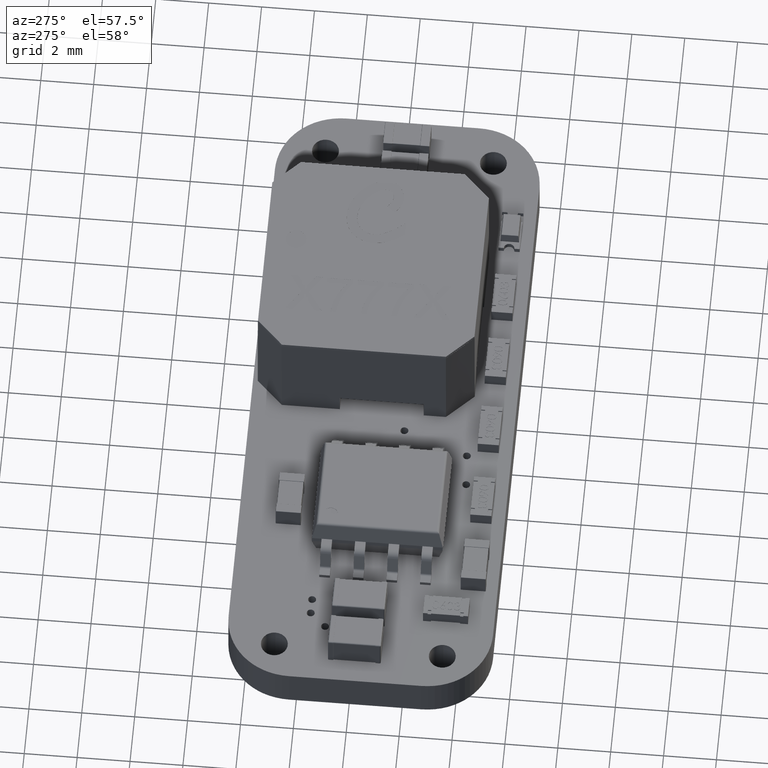
[diagram: clean part render]
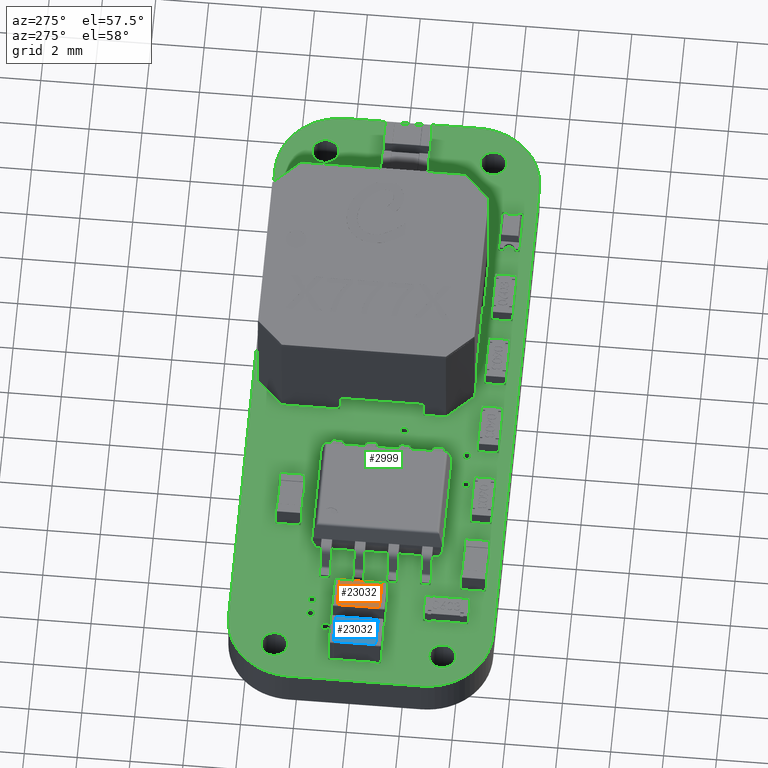
[diagram: same view with three faces highlighted in distinct colors, each labeled with its STEP entity id]
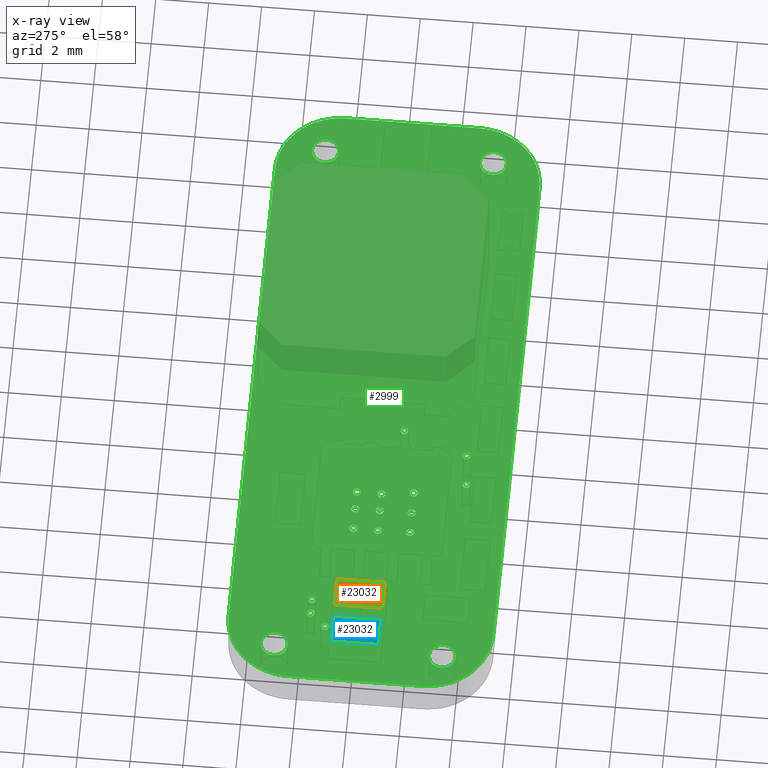
[diagram: x-ray of the same camera — body ghosted, the three highlighted faces saturated]
A machine part, auxiliary view with three faces highlighted in distinct colors.
The next image is the same camera in x-ray (body ghosted, the three faces saturated) — at least one of them is partly hidden behind the body in this view.
Their STEP definitions:

[orange] entity #23032 — the highlighted planar face has unit normal (-0, -0, -1).
#22825 = VERTEX_POINT('',#22826);
#22826 = CARTESIAN_POINT('',(0.9,-0.56,1.235));
#22835 = EDGE_CURVE('',#22825,#22836,#22838,.T.);
#22836 = VERTEX_POINT('',#22837);
#22837 = CARTESIAN_POINT('',(-0.9,-0.56,1.235));
#22838 = LINE('',#22839,#22840);
#22839 = CARTESIAN_POINT('',(0.9,-0.56,1.235));
#22840 = VECTOR('',#22841,1.);
#22841 = DIRECTION('',(-1.,0.,-1.204669080539E-16));
#22911 = VERTEX_POINT('',#22912);
#22912 = CARTESIAN_POINT('',(0.9,0.56,1.235));
#22928 = VERTEX_POINT('',#22929);
#22929 = CARTESIAN_POINT('',(-0.9,0.56,1.235));
#22936 = EDGE_CURVE('',#22911,#22928,#22937,.T.);
#22937 = LINE('',#22938,#22939);
#22938 = CARTESIAN_POINT('',(-0.9,0.56,1.235));
#22939 = VECTOR('',#22940,1.);
#22940 = DIRECTION('',(-1.,0.,-1.204669080539E-16));
#23032 = ADVANCED_FACE('',(#23033),#23049,.F.);
#23033 = FACE_BOUND('',#23034,.T.);
#23034 = EDGE_LOOP('',(#23035,#23041,#23042,#23048));
#23035 = ORIENTED_EDGE('',*,*,#23036,.T.);
#23036 = EDGE_CURVE('',#22825,#22911,#23037,.T.);
#23037 = LINE('',#23038,#23039);
#23038 = CARTESIAN_POINT('',(0.9,-0.61,1.235));
#23039 = VECTOR('',#23040,1.);
#23040 = DIRECTION('',(0.,1.,0.));
#23041 = ORIENTED_EDGE('',*,*,#22936,.T.);
#23042 = ORIENTED_EDGE('',*,*,#23043,.F.);
#23043 = EDGE_CURVE('',#22836,#22928,#23044,.T.);
#23044 = LINE('',#23045,#23046);
#23045 = CARTESIAN_POINT('',(-0.9,-0.61,1.235));
#23046 = VECTOR('',#23047,1.);
#23047 = DIRECTION('',(0.,1.,0.));
#23048 = ORIENTED_EDGE('',*,*,#22835,.F.);
#23049 = PLANE('',#23050);
#23050 = AXIS2_PLACEMENT_3D('',#23051,#23052,#23053);
#23051 = CARTESIAN_POINT('',(-3.252606517457E-16,-0.61,1.235));
#23052 = DIRECTION('',(1.204669080539E-16,0.,-1.));
#23053 = DIRECTION('',(-1.,0.,-1.204669080539E-16));

[blue] entity #23032 — the highlighted planar face has unit normal (-0, -0, -1).
#22825 = VERTEX_POINT('',#22826);
#22826 = CARTESIAN_POINT('',(0.9,-0.56,1.235));
#22835 = EDGE_CURVE('',#22825,#22836,#22838,.T.);
#22836 = VERTEX_POINT('',#22837);
#22837 = CARTESIAN_POINT('',(-0.9,-0.56,1.235));
#22838 = LINE('',#22839,#22840);
#22839 = CARTESIAN_POINT('',(0.9,-0.56,1.235));
#22840 = VECTOR('',#22841,1.);
#22841 = DIRECTION('',(-1.,0.,-1.204669080539E-16));
#22911 = VERTEX_POINT('',#22912);
#22912 = CARTESIAN_POINT('',(0.9,0.56,1.235));
#22928 = VERTEX_POINT('',#22929);
#22929 = CARTESIAN_POINT('',(-0.9,0.56,1.235));
#22936 = EDGE_CURVE('',#22911,#22928,#22937,.T.);
#22937 = LINE('',#22938,#22939);
#22938 = CARTESIAN_POINT('',(-0.9,0.56,1.235));
#22939 = VECTOR('',#22940,1.);
#22940 = DIRECTION('',(-1.,0.,-1.204669080539E-16));
#23032 = ADVANCED_FACE('',(#23033),#23049,.F.);
#23033 = FACE_BOUND('',#23034,.T.);
#23034 = EDGE_LOOP('',(#23035,#23041,#23042,#23048));
#23035 = ORIENTED_EDGE('',*,*,#23036,.T.);
#23036 = EDGE_CURVE('',#22825,#22911,#23037,.T.);
#23037 = LINE('',#23038,#23039);
#23038 = CARTESIAN_POINT('',(0.9,-0.61,1.235));
#23039 = VECTOR('',#23040,1.);
#23040 = DIRECTION('',(0.,1.,0.));
#23041 = ORIENTED_EDGE('',*,*,#22936,.T.);
#23042 = ORIENTED_EDGE('',*,*,#23043,.F.);
#23043 = EDGE_CURVE('',#22836,#22928,#23044,.T.);
#23044 = LINE('',#23045,#23046);
#23045 = CARTESIAN_POINT('',(-0.9,-0.61,1.235));
#23046 = VECTOR('',#23047,1.);
#23047 = DIRECTION('',(0.,1.,0.));
#23048 = ORIENTED_EDGE('',*,*,#22835,.F.);
#23049 = PLANE('',#23050);
#23050 = AXIS2_PLACEMENT_3D('',#23051,#23052,#23053);
#23051 = CARTESIAN_POINT('',(-3.252606517457E-16,-0.61,1.235));
#23052 = DIRECTION('',(1.204669080539E-16,0.,-1.));
#23053 = DIRECTION('',(-1.,0.,-1.204669080539E-16));

[green] entity #2999 — the highlighted planar face has unit normal (0, 0, 1).
#102 = VERTEX_POINT('',#103);
#103 = CARTESIAN_POINT('',(35.5095,-5.246,0.82));
#109 = EDGE_CURVE('',#102,#110,#112,.T.);
#110 = VERTEX_POINT('',#111);
#111 = CARTESIAN_POINT('',(15.5095,-5.246,0.82));
#112 = LINE('',#113,#114);
#113 = CARTESIAN_POINT('',(35.5095,-5.246,0.82));
#114 = VECTOR('',#115,1.);
#115 = DIRECTION('',(-1.,0.,0.));
#142 = VERTEX_POINT('',#143);
#143 = CARTESIAN_POINT('',(35.76932,-5.25863,0.82));
#149 = EDGE_CURVE('',#142,#102,#150,.T.);
#150 = LINE('',#151,#152);
#151 = CARTESIAN_POINT('',(35.76932,-5.25863,0.82));
#152 = VECTOR('',#153,1.);
#153 = DIRECTION('',(-0.998820595701,4.855324503005E-02,0.));
#171 = EDGE_CURVE('',#110,#172,#174,.T.);
#172 = VERTEX_POINT('',#173);
#173 = CARTESIAN_POINT('',(15.24968,-5.25863,0.82));
#174 = LINE('',#175,#176);
#175 = CARTESIAN_POINT('',(15.5095,-5.246,0.82));
#176 = VECTOR('',#177,1.);
#177 = DIRECTION('',(-0.998820595701,-4.855324503005E-02,0.));
#204 = VERTEX_POINT('',#205);
#205 = CARTESIAN_POINT('',(36.02067,-5.29574,0.82));
#211 = EDGE_CURVE('',#204,#142,#212,.T.);
#212 = LINE('',#213,#214);
#213 = CARTESIAN_POINT('',(36.02067,-5.29574,0.82));
#214 = VECTOR('',#215,1.);
#215 = DIRECTION('',(-0.989275824391,0.146059382706,0.));
#233 = EDGE_CURVE('',#172,#234,#236,.T.);
#234 = VERTEX_POINT('',#235);
#235 = CARTESIAN_POINT('',(14.99833,-5.29574,0.82));
#236 = LINE('',#237,#238);
#237 = CARTESIAN_POINT('',(15.24968,-5.25863,0.82));
#238 = VECTOR('',#239,1.);
#239 = DIRECTION('',(-0.989275824391,-0.146059382706,0.));
#266 = VERTEX_POINT('',#267);
#267 = CARTESIAN_POINT('',(36.26241,-5.35621,0.82));
#273 = EDGE_CURVE('',#266,#204,#274,.T.);
#274 = LINE('',#275,#276);
#275 = CARTESIAN_POINT('',(36.26241,-5.35621,0.82));
#276 = VECTOR('',#277,1.);
#277 = DIRECTION('',(-0.970109442671,0.242667816656,0.));
#295 = EDGE_CURVE('',#234,#296,#298,.T.);
#296 = VERTEX_POINT('',#297);
#297 = CARTESIAN_POINT('',(14.75659,-5.35621,0.82));
#298 = LINE('',#299,#300);
#299 = CARTESIAN_POINT('',(14.99833,-5.29574,0.82));
#300 = VECTOR('',#301,1.);
#301 = DIRECTION('',(-0.970109442671,-0.242667816656,0.));
#328 = VERTEX_POINT('',#329);
#329 = CARTESIAN_POINT('',(36.49339,-5.43887,0.82));
#335 = EDGE_CURVE('',#328,#266,#336,.T.);
#336 = LINE('',#337,#338);
#337 = CARTESIAN_POINT('',(36.49339,-5.43887,0.82));
#338 = VECTOR('',#339,1.);
#339 = DIRECTION('',(-0.941525917724,0.336940567837,0.));
#357 = EDGE_CURVE('',#296,#358,#360,.T.);
#358 = VERTEX_POINT('',#359);
#359 = CARTESIAN_POINT('',(14.52561,-5.43887,0.82));
#360 = LINE('',#361,#362);
#361 = CARTESIAN_POINT('',(14.75659,-5.35621,0.82));
#362 = VECTOR('',#363,1.);
#363 = DIRECTION('',(-0.941525917724,-0.336940567837,0.));
#390 = VERTEX_POINT('',#391);
#391 = CARTESIAN_POINT('',(36.71247,-5.54259,0.82));
#397 = EDGE_CURVE('',#390,#328,#398,.T.);
#398 = LINE('',#399,#400);
#399 = CARTESIAN_POINT('',(36.71247,-5.54259,0.82));
#400 = VECTOR('',#401,1.);
#401 = DIRECTION('',(-0.903825184632,0.427901899534,0.));
#419 = EDGE_CURVE('',#358,#420,#422,.T.);
#420 = VERTEX_POINT('',#421);
#421 = CARTESIAN_POINT('',(14.30653,-5.54259,0.82));
#422 = LINE('',#423,#424);
#423 = CARTESIAN_POINT('',(14.52561,-5.43887,0.82));
#424 = VECTOR('',#425,1.);
#425 = DIRECTION('',(-0.903825184632,-0.427901899534,0.));
#452 = VERTEX_POINT('',#453);
#453 = CARTESIAN_POINT('',(36.9185,-5.66623,0.82));
#459 = EDGE_CURVE('',#452,#390,#460,.T.);
#460 = LINE('',#461,#462);
#461 = CARTESIAN_POINT('',(36.9185,-5.66623,0.82));
#462 = VECTOR('',#463,1.);
#463 = DIRECTION('',(-0.857452529276,0.514563076832,0.));
#481 = EDGE_CURVE('',#420,#482,#484,.T.);
#482 = VERTEX_POINT('',#483);
#483 = CARTESIAN_POINT('',(14.1005,-5.66623,0.82));
#484 = LINE('',#485,#486);
#485 = CARTESIAN_POINT('',(14.30653,-5.54259,0.82));
#486 = VECTOR('',#487,1.);
#487 = DIRECTION('',(-0.857452529276,-0.514563076832,0.));
#514 = VERTEX_POINT('',#515);
#515 = CARTESIAN_POINT('',(37.11034,-5.80863,0.82));
#521 = EDGE_CURVE('',#514,#452,#522,.T.);
#522 = LINE('',#523,#524);
#523 = CARTESIAN_POINT('',(37.11034,-5.80863,0.82));
#524 = VECTOR('',#525,1.);
#525 = DIRECTION('',(-0.802963619462,0.596028041136,0.));
#543 = EDGE_CURVE('',#482,#544,#546,.T.);
#544 = VERTEX_POINT('',#545);
#545 = CARTESIAN_POINT('',(13.90866,-5.80863,0.82));
#546 = LINE('',#547,#548);
#547 = CARTESIAN_POINT('',(14.1005,-5.66623,0.82));
#548 = VECTOR('',#549,1.);
#549 = DIRECTION('',(-0.802963619462,-0.596028041136,0.));
#576 = VERTEX_POINT('',#577);
#577 = CARTESIAN_POINT('',(37.28684,-5.96866,0.82));
#583 = EDGE_CURVE('',#576,#514,#584,.T.);
#584 = LINE('',#585,#586);
#585 = CARTESIAN_POINT('',(37.28684,-5.96866,0.82));
#586 = VECTOR('',#587,1.);
#587 = DIRECTION('',(-0.740826374458,0.671696570564,0.));
#605 = EDGE_CURVE('',#544,#606,#608,.T.);
#606 = VERTEX_POINT('',#607);
#607 = CARTESIAN_POINT('',(13.73216,-5.96866,0.82));
#608 = LINE('',#609,#610);
#609 = CARTESIAN_POINT('',(13.90866,-5.80863,0.82));
#610 = VECTOR('',#611,1.);
#611 = DIRECTION('',(-0.740826374458,-0.671696570564,0.));
#638 = VERTEX_POINT('',#639);
#639 = CARTESIAN_POINT('',(37.44687,-6.14516,0.82));
#645 = EDGE_CURVE('',#638,#576,#646,.T.);
#646 = LINE('',#647,#648);
#647 = CARTESIAN_POINT('',(37.44687,-6.14516,0.82));
#648 = VECTOR('',#649,1.);
#649 = DIRECTION('',(-0.671696570564,0.740826374458,0.));
#667 = EDGE_CURVE('',#606,#668,#670,.T.);
#668 = VERTEX_POINT('',#669);
#669 = CARTESIAN_POINT('',(13.57213,-6.14516,0.82));
#670 = LINE('',#671,#672);
#671 = CARTESIAN_POINT('',(13.73216,-5.96866,0.82));
#672 = VECTOR('',#673,1.);
#673 = DIRECTION('',(-0.671696570564,-0.740826374458,0.));
#700 = VERTEX_POINT('',#701);
#701 = CARTESIAN_POINT('',(37.58927,-6.337,0.82));
#707 = EDGE_CURVE('',#700,#638,#708,.T.);
#708 = LINE('',#709,#710);
#709 = CARTESIAN_POINT('',(37.58927,-6.337,0.82));
#710 = VECTOR('',#711,1.);
#711 = DIRECTION('',(-0.596028041136,0.802963619462,0.));
#729 = EDGE_CURVE('',#668,#730,#732,.T.);
#730 = VERTEX_POINT('',#731);
#731 = CARTESIAN_POINT('',(13.42973,-6.337,0.82));
#732 = LINE('',#733,#734);
#733 = CARTESIAN_POINT('',(13.57213,-6.14516,0.82));
#734 = VECTOR('',#735,1.);
#735 = DIRECTION('',(-0.596028041136,-0.802963619462,0.));
#762 = VERTEX_POINT('',#763);
#763 = CARTESIAN_POINT('',(37.71291,-6.54304,0.82));
#769 = EDGE_CURVE('',#762,#700,#770,.T.);
#770 = LINE('',#771,#772);
#771 = CARTESIAN_POINT('',(37.71291,-6.54304,0.82));
#772 = VECTOR('',#773,1.);
#773 = DIRECTION('',(-0.514544715016,0.857463548058,0.));
#791 = EDGE_CURVE('',#730,#792,#794,.T.);
#792 = VERTEX_POINT('',#793);
#793 = CARTESIAN_POINT('',(13.30609,-6.54304,0.82));
#794 = LINE('',#795,#796);
#795 = CARTESIAN_POINT('',(13.42973,-6.337,0.82));
#796 = VECTOR('',#797,1.);
#797 = DIRECTION('',(-0.514544715016,-0.857463548058,0.));
#824 = VERTEX_POINT('',#825);
#825 = CARTESIAN_POINT('',(37.81663,-6.76211,0.82));
#831 = EDGE_CURVE('',#824,#762,#832,.T.);
#832 = LINE('',#833,#834);
#833 = CARTESIAN_POINT('',(37.81663,-6.76211,0.82));
#834 = VECTOR('',#835,1.);
#835 = DIRECTION('',(-0.427917855561,0.903817630328,0.));
#853 = EDGE_CURVE('',#792,#854,#856,.T.);
#854 = VERTEX_POINT('',#855);
#855 = CARTESIAN_POINT('',(13.20237,-6.76211,0.82));
#856 = LINE('',#857,#858);
#857 = CARTESIAN_POINT('',(13.30609,-6.54304,0.82));
#858 = VECTOR('',#859,1.);
#859 = DIRECTION('',(-0.427917855561,-0.903817630328,0.));
#886 = VERTEX_POINT('',#887);
#887 = CARTESIAN_POINT('',(37.89929,-6.99309,0.82));
#893 = EDGE_CURVE('',#886,#824,#894,.T.);
#894 = LINE('',#895,#896);
#895 = CARTESIAN_POINT('',(37.89929,-6.99309,0.82));
#896 = VECTOR('',#897,1.);
#897 = DIRECTION('',(-0.336940567837,0.941525917724,0.));
#915 = EDGE_CURVE('',#854,#916,#918,.T.);
#916 = VERTEX_POINT('',#917);
#917 = CARTESIAN_POINT('',(13.11971,-6.99309,0.82));
#918 = LINE('',#919,#920);
#919 = CARTESIAN_POINT('',(13.20237,-6.76211,0.82));
#920 = VECTOR('',#921,1.);
#921 = DIRECTION('',(-0.336940567837,-0.941525917724,0.));
#948 = VERTEX_POINT('',#949);
#949 = CARTESIAN_POINT('',(37.95976,-7.23483,0.82));
#955 = EDGE_CURVE('',#948,#886,#956,.T.);
#956 = LINE('',#957,#958);
#957 = CARTESIAN_POINT('',(37.95976,-7.23483,0.82));
#958 = VECTOR('',#959,1.);
#959 = DIRECTION('',(-0.242667816656,0.970109442671,0.));
#977 = EDGE_CURVE('',#916,#978,#980,.T.);
#978 = VERTEX_POINT('',#979);
#979 = CARTESIAN_POINT('',(13.05924,-7.23483,0.82));
#980 = LINE('',#981,#982);
#981 = CARTESIAN_POINT('',(13.11971,-6.99309,0.82));
#982 = VECTOR('',#983,1.);
#983 = DIRECTION('',(-0.242667816656,-0.970109442671,0.));
#1010 = VERTEX_POINT('',#1011);
#1011 = CARTESIAN_POINT('',(37.99687,-7.48618,0.82));
#1017 = EDGE_CURVE('',#1010,#948,#1018,.T.);
#1018 = LINE('',#1019,#1020);
#1019 = CARTESIAN_POINT('',(37.99687,-7.48618,0.82));
#1020 = VECTOR('',#1021,1.);
#1021 = DIRECTION('',(-0.146059382706,0.989275824391,0.));
#1039 = EDGE_CURVE('',#978,#1040,#1042,.T.);
#1040 = VERTEX_POINT('',#1041);
#1041 = CARTESIAN_POINT('',(13.02213,-7.48618,0.82));
#1042 = LINE('',#1043,#1044);
#1043 = CARTESIAN_POINT('',(13.05924,-7.23483,0.82));
#1044 = VECTOR('',#1045,1.);
#1045 = DIRECTION('',(-0.146059382706,-0.989275824391,0.));
#1072 = VERTEX_POINT('',#1073);
#1073 = CARTESIAN_POINT('',(38.0095,-7.746,0.82));
#1079 = EDGE_CURVE('',#1072,#1010,#1080,.T.);
#1080 = LINE('',#1081,#1082);
#1081 = CARTESIAN_POINT('',(38.0095,-7.746,0.82));
#1082 = VECTOR('',#1083,1.);
#1083 = DIRECTION('',(-4.855324503005E-02,0.998820595701,0.));
#1101 = EDGE_CURVE('',#1040,#1102,#1104,.T.);
#1102 = VERTEX_POINT('',#1103);
#1103 = CARTESIAN_POINT('',(13.0095,-7.746,0.82));
#1104 = LINE('',#1105,#1106);
#1105 = CARTESIAN_POINT('',(13.02213,-7.48618,0.82));
#1106 = VECTOR('',#1107,1.);
#1107 = DIRECTION('',(-4.855324503005E-02,-0.998820595701,0.));
#1134 = VERTEX_POINT('',#1135);
#1135 = CARTESIAN_POINT('',(38.0095,-12.746,0.82));
#1141 = EDGE_CURVE('',#1134,#1072,#1142,.T.);
#1142 = LINE('',#1143,#1144);
#1143 = CARTESIAN_POINT('',(38.0095,-12.746,0.82));
#1144 = VECTOR('',#1145,1.);
#1145 = DIRECTION('',(0.,1.,0.));
#1163 = EDGE_CURVE('',#1102,#1164,#1166,.T.);
#1164 = VERTEX_POINT('',#1165);
#1165 = CARTESIAN_POINT('',(13.0095,-12.746,0.82));
#1166 = LINE('',#1167,#1168);
#1167 = CARTESIAN_POINT('',(13.0095,-7.746,0.82));
#1168 = VECTOR('',#1169,1.);
#1169 = DIRECTION('',(0.,-1.,0.));
#1196 = VERTEX_POINT('',#1197);
#1197 = CARTESIAN_POINT('',(37.99687,-13.00582,0.82));
#1203 = EDGE_CURVE('',#1196,#1134,#1204,.T.);
#1204 = LINE('',#1205,#1206);
#1205 = CARTESIAN_POINT('',(37.99687,-13.00582,0.82));
#1206 = VECTOR('',#1207,1.);
#1207 = DIRECTION('',(4.855324503005E-02,0.998820595701,0.));
#1225 = EDGE_CURVE('',#1164,#1226,#1228,.T.);
#1226 = VERTEX_POINT('',#1227);
#1227 = CARTESIAN_POINT('',(13.02213,-13.00582,0.82));
#1228 = LINE('',#1229,#1230);
#1229 = CARTESIAN_POINT('',(13.0095,-12.746,0.82));
#1230 = VECTOR('',#1231,1.);
#1231 = DIRECTION('',(4.855324503005E-02,-0.998820595701,0.));
#1258 = VERTEX_POINT('',#1259);
#1259 = CARTESIAN_POINT('',(37.95976,-13.25717,0.82));
#1265 = EDGE_CURVE('',#1258,#1196,#1266,.T.);
#1266 = LINE('',#1267,#1268);
#1267 = CARTESIAN_POINT('',(37.95976,-13.25717,0.82));
#1268 = VECTOR('',#1269,1.);
#1269 = DIRECTION('',(0.146059382706,0.989275824391,0.));
#1287 = EDGE_CURVE('',#1226,#1288,#1290,.T.);
#1288 = VERTEX_POINT('',#1289);
#1289 = CARTESIAN_POINT('',(13.05924,-13.25717,0.82));
#1290 = LINE('',#1291,#1292);
#1291 = CARTESIAN_POINT('',(13.02213,-13.00582,0.82));
#1292 = VECTOR('',#1293,1.);
#1293 = DIRECTION('',(0.146059382706,-0.989275824391,0.));
#1320 = VERTEX_POINT('',#1321);
#1321 = CARTESIAN_POINT('',(37.89929,-13.49891,0.82));
#1327 = EDGE_CURVE('',#1320,#1258,#1328,.T.);
#1328 = LINE('',#1329,#1330);
#1329 = CARTESIAN_POINT('',(37.89929,-13.49891,0.82));
#1330 = VECTOR('',#1331,1.);
#1331 = DIRECTION('',(0.242667816656,0.970109442671,0.));
#1349 = EDGE_CURVE('',#1288,#1350,#1352,.T.);
#1350 = VERTEX_POINT('',#1351);
#1351 = CARTESIAN_POINT('',(13.11971,-13.49891,0.82));
#1352 = LINE('',#1353,#1354);
#1353 = CARTESIAN_POINT('',(13.05924,-13.25717,0.82));
#1354 = VECTOR('',#1355,1.);
#1355 = DIRECTION('',(0.242667816656,-0.970109442671,0.));
#1382 = VERTEX_POINT('',#1383);
#1383 = CARTESIAN_POINT('',(37.81663,-13.72989,0.82));
#1389 = EDGE_CURVE('',#1382,#1320,#1390,.T.);
#1390 = LINE('',#1391,#1392);
#1391 = CARTESIAN_POINT('',(37.81663,-13.72989,0.82));
#1392 = VECTOR('',#1393,1.);
#1393 = DIRECTION('',(0.336940567837,0.941525917724,0.));
#1411 = EDGE_CURVE('',#1350,#1412,#1414,.T.);
#1412 = VERTEX_POINT('',#1413);
#1413 = CARTESIAN_POINT('',(13.20237,-13.72989,0.82));
#1414 = LINE('',#1415,#1416);
#1415 = CARTESIAN_POINT('',(13.11971,-13.49891,0.82));
#1416 = VECTOR('',#1417,1.);
#1417 = DIRECTION('',(0.336940567837,-0.941525917724,0.));
#1444 = VERTEX_POINT('',#1445);
#1445 = CARTESIAN_POINT('',(37.71291,-13.94896,0.82));
#1451 = EDGE_CURVE('',#1444,#1382,#1452,.T.);
#1452 = LINE('',#1453,#1454);
#1453 = CARTESIAN_POINT('',(37.71291,-13.94896,0.82));
#1454 = VECTOR('',#1455,1.);
#1455 = DIRECTION('',(0.427917855561,0.903817630328,0.));
#1473 = EDGE_CURVE('',#1412,#1474,#1476,.T.);
#1474 = VERTEX_POINT('',#1475);
#1475 = CARTESIAN_POINT('',(13.30609,-13.94896,0.82));
#1476 = LINE('',#1477,#1478);
#1477 = CARTESIAN_POINT('',(13.20237,-13.72989,0.82));
#1478 = VECTOR('',#1479,1.);
#1479 = DIRECTION('',(0.427917855561,-0.903817630328,0.));
#1506 = VERTEX_POINT('',#1507);
#1507 = CARTESIAN_POINT('',(37.58927,-14.155,0.82));
#1513 = EDGE_CURVE('',#1506,#1444,#1514,.T.);
#1514 = LINE('',#1515,#1516);
#1515 = CARTESIAN_POINT('',(37.58927,-14.155,0.82));
#1516 = VECTOR('',#1517,1.);
#1517 = DIRECTION('',(0.514544715016,0.857463548058,0.));
#1535 = EDGE_CURVE('',#1474,#1536,#1538,.T.);
#1536 = VERTEX_POINT('',#1537);
#1537 = CARTESIAN_POINT('',(13.42973,-14.155,0.82));
#1538 = LINE('',#1539,#1540);
#1539 = CARTESIAN_POINT('',(13.30609,-13.94896,0.82));
#1540 = VECTOR('',#1541,1.);
#1541 = DIRECTION('',(0.514544715016,-0.857463548058,0.));
#1568 = VERTEX_POINT('',#1569);
#1569 = CARTESIAN_POINT('',(37.44687,-14.34684,0.82));
#1575 = EDGE_CURVE('',#1568,#1506,#1576,.T.);
#1576 = LINE('',#1577,#1578);
#1577 = CARTESIAN_POINT('',(37.44687,-14.34684,0.82));
#1578 = VECTOR('',#1579,1.);
#1579 = DIRECTION('',(0.596028041136,0.802963619462,0.));
#1597 = EDGE_CURVE('',#1536,#1598,#1600,.T.);
#1598 = VERTEX_POINT('',#1599);
#1599 = CARTESIAN_POINT('',(13.57213,-14.34684,0.82));
#1600 = LINE('',#1601,#1602);
#1601 = CARTESIAN_POINT('',(13.42973,-14.155,0.82));
#1602 = VECTOR('',#1603,1.);
#1603 = DIRECTION('',(0.596028041136,-0.802963619462,0.));
#1630 = VERTEX_POINT('',#1631);
#1631 = CARTESIAN_POINT('',(37.28684,-14.52334,0.82));
#1637 = EDGE_CURVE('',#1630,#1568,#1638,.T.);
#1638 = LINE('',#1639,#1640);
#1639 = CARTESIAN_POINT('',(37.28684,-14.52334,0.82));
#1640 = VECTOR('',#1641,1.);
#1641 = DIRECTION('',(0.671696570564,0.740826374458,0.));
#1659 = EDGE_CURVE('',#1598,#1660,#1662,.T.);
#1660 = VERTEX_POINT('',#1661);
#1661 = CARTESIAN_POINT('',(13.73216,-14.52334,0.82));
#1662 = LINE('',#1663,#1664);
#1663 = CARTESIAN_POINT('',(13.57213,-14.34684,0.82));
#1664 = VECTOR('',#1665,1.);
#1665 = DIRECTION('',(0.671696570564,-0.740826374458,0.));
#1692 = VERTEX_POINT('',#1693);
#1693 = CARTESIAN_POINT('',(37.11034,-14.68337,0.82));
#1699 = EDGE_CURVE('',#1692,#1630,#1700,.T.);
#1700 = LINE('',#1701,#1702);
#1701 = CARTESIAN_POINT('',(37.11034,-14.68337,0.82));
#1702 = VECTOR('',#1703,1.);
#1703 = DIRECTION('',(0.740826374458,0.671696570564,0.));
#1721 = EDGE_CURVE('',#1660,#1722,#1724,.T.);
#1722 = VERTEX_POINT('',#1723);
#1723 = CARTESIAN_POINT('',(13.90866,-14.68337,0.82));
#1724 = LINE('',#1725,#1726);
#1725 = CARTESIAN_POINT('',(13.73216,-14.52334,0.82));
#1726 = VECTOR('',#1727,1.);
#1727 = DIRECTION('',(0.740826374458,-0.671696570564,0.));
#1754 = VERTEX_POINT('',#1755);
#1755 = CARTESIAN_POINT('',(36.9185,-14.82577,0.82));
#1761 = EDGE_CURVE('',#1754,#1692,#1762,.T.);
#1762 = LINE('',#1763,#1764);
#1763 = CARTESIAN_POINT('',(36.9185,-14.82577,0.82));
#1764 = VECTOR('',#1765,1.);
#1765 = DIRECTION('',(0.802963619462,0.596028041136,0.));
#1783 = EDGE_CURVE('',#1722,#1784,#1786,.T.);
#1784 = VERTEX_POINT('',#1785);
#1785 = CARTESIAN_POINT('',(14.1005,-14.82577,0.82));
#1786 = LINE('',#1787,#1788);
#1787 = CARTESIAN_POINT('',(13.90866,-14.68337,0.82));
#1788 = VECTOR('',#1789,1.);
#1789 = DIRECTION('',(0.802963619462,-0.596028041136,0.));
#1816 = VERTEX_POINT('',#1817);
#1817 = CARTESIAN_POINT('',(36.71247,-14.94941,0.82));
#1823 = EDGE_CURVE('',#1816,#1754,#1824,.T.);
#1824 = LINE('',#1825,#1826);
#1825 = CARTESIAN_POINT('',(36.71247,-14.94941,0.82));
#1826 = VECTOR('',#1827,1.);
#1827 = DIRECTION('',(0.857452529276,0.514563076832,0.));
#1845 = EDGE_CURVE('',#1784,#1846,#1848,.T.);
#1846 = VERTEX_POINT('',#1847);
#1847 = CARTESIAN_POINT('',(14.30653,-14.94941,0.82));
#1848 = LINE('',#1849,#1850);
#1849 = CARTESIAN_POINT('',(14.1005,-14.82577,0.82));
#1850 = VECTOR('',#1851,1.);
#1851 = DIRECTION('',(0.857452529276,-0.514563076832,0.));
#1878 = VERTEX_POINT('',#1879);
#1879 = CARTESIAN_POINT('',(36.49339,-15.05313,0.82));
#1885 = EDGE_CURVE('',#1878,#1816,#1886,.T.);
#1886 = LINE('',#1887,#1888);
#1887 = CARTESIAN_POINT('',(36.49339,-15.05313,0.82));
#1888 = VECTOR('',#1889,1.);
#1889 = DIRECTION('',(0.903825184632,0.427901899534,0.));
#1907 = EDGE_CURVE('',#1846,#1908,#1910,.T.);
#1908 = VERTEX_POINT('',#1909);
#1909 = CARTESIAN_POINT('',(14.52561,-15.05313,0.82));
#1910 = LINE('',#1911,#1912);
#1911 = CARTESIAN_POINT('',(14.30653,-14.94941,0.82));
#1912 = VECTOR('',#1913,1.);
#1913 = DIRECTION('',(0.903825184632,-0.427901899534,0.));
#1940 = VERTEX_POINT('',#1941);
#1941 = CARTESIAN_POINT('',(36.26241,-15.13579,0.82));
#1947 = EDGE_CURVE('',#1940,#1878,#1948,.T.);
#1948 = LINE('',#1949,#1950);
#1949 = CARTESIAN_POINT('',(36.26241,-15.13579,0.82));
#1950 = VECTOR('',#1951,1.);
#1951 = DIRECTION('',(0.941525917724,0.336940567837,0.));
#1969 = EDGE_CURVE('',#1908,#1970,#1972,.T.);
#1970 = VERTEX_POINT('',#1971);
#1971 = CARTESIAN_POINT('',(14.75659,-15.13579,0.82));
#1972 = LINE('',#1973,#1974);
#1973 = CARTESIAN_POINT('',(14.52561,-15.05313,0.82));
#1974 = VECTOR('',#1975,1.);
#1975 = DIRECTION('',(0.941525917724,-0.336940567837,0.));
#2002 = VERTEX_POINT('',#2003);
#2003 = CARTESIAN_POINT('',(36.02067,-15.19626,0.82));
#2009 = EDGE_CURVE('',#2002,#1940,#2010,.T.);
#2010 = LINE('',#2011,#2012);
#2011 = CARTESIAN_POINT('',(36.02067,-15.19626,0.82));
#2012 = VECTOR('',#2013,1.);
#2013 = DIRECTION('',(0.970109442671,0.242667816656,0.));
#2031 = EDGE_CURVE('',#1970,#2032,#2034,.T.);
#2032 = VERTEX_POINT('',#2033);
#2033 = CARTESIAN_POINT('',(14.99833,-15.19626,0.82));
#2034 = LINE('',#2035,#2036);
#2035 = CARTESIAN_POINT('',(14.75659,-15.13579,0.82));
#2036 = VECTOR('',#2037,1.);
#2037 = DIRECTION('',(0.970109442671,-0.242667816656,0.));
#2064 = VERTEX_POINT('',#2065);
#2065 = CARTESIAN_POINT('',(35.76932,-15.23337,0.82));
#2071 = EDGE_CURVE('',#2064,#2002,#2072,.T.);
#2072 = LINE('',#2073,#2074);
#2073 = CARTESIAN_POINT('',(35.76932,-15.23337,0.82));
#2074 = VECTOR('',#2075,1.);
#2075 = DIRECTION('',(0.989275824391,0.146059382706,0.));
#2093 = EDGE_CURVE('',#2032,#2094,#2096,.T.);
#2094 = VERTEX_POINT('',#2095);
#2095 = CARTESIAN_POINT('',(15.24968,-15.23337,0.82));
#2096 = LINE('',#2097,#2098);
#2097 = CARTESIAN_POINT('',(14.99833,-15.19626,0.82));
#2098 = VECTOR('',#2099,1.);
#2099 = DIRECTION('',(0.989275824391,-0.146059382706,0.));
#2126 = VERTEX_POINT('',#2127);
#2127 = CARTESIAN_POINT('',(35.5095,-15.246,0.82));
#2133 = EDGE_CURVE('',#2126,#2064,#2134,.T.);
#2134 = LINE('',#2135,#2136);
#2135 = CARTESIAN_POINT('',(35.5095,-15.246,0.82));
#2136 = VECTOR('',#2137,1.);
#2137 = DIRECTION('',(0.998820595701,4.855324503005E-02,0.));
#2155 = EDGE_CURVE('',#2094,#2156,#2158,.T.);
#2156 = VERTEX_POINT('',#2157);
#2157 = CARTESIAN_POINT('',(15.5095,-15.246,0.82));
#2158 = LINE('',#2159,#2160);
#2159 = CARTESIAN_POINT('',(15.24968,-15.23337,0.82));
#2160 = VECTOR('',#2161,1.);
#2161 = DIRECTION('',(0.998820595701,-4.855324503005E-02,0.));
#2186 = EDGE_CURVE('',#2156,#2126,#2187,.T.);
#2187 = LINE('',#2188,#2189);
#2188 = CARTESIAN_POINT('',(15.5095,-15.246,0.82));
#2189 = VECTOR('',#2190,1.);
#2190 = DIRECTION('',(1.,0.,0.));
#2210 = VERTEX_POINT('',#2211);
#2211 = CARTESIAN_POINT('',(14.905,-13.421,0.82));
#2217 = EDGE_CURVE('',#2210,#2210,#2218,.T.);
#2218 = CIRCLE('',#2219,0.508);
#2219 = AXIS2_PLACEMENT_3D('',#2220,#2221,#2222);
#2220 = CARTESIAN_POINT('',(14.397,-13.421,0.82));
#2221 = DIRECTION('',(0.,0.,1.));
#2222 = DIRECTION('',(1.,0.,-0.));
#2243 = VERTEX_POINT('',#2244);
#2244 = CARTESIAN_POINT('',(22.26465,-13.64868,0.82));
#2250 = EDGE_CURVE('',#2243,#2243,#2251,.T.);
#2251 = CIRCLE('',#2252,0.15);
#2252 = AXIS2_PLACEMENT_3D('',#2253,#2254,#2255);
#2253 = CARTESIAN_POINT('',(22.11465,-13.64868,0.82));
#2254 = DIRECTION('',(0.,0.,1.));
#2255 = DIRECTION('',(1.,0.,-0.));
#2276 = VERTEX_POINT('',#2277);
#2277 = CARTESIAN_POINT('',(23.54425,-13.56308,0.82));
#2283 = EDGE_CURVE('',#2276,#2276,#2284,.T.);
#2284 = CIRCLE('',#2285,0.15);
#2285 = AXIS2_PLACEMENT_3D('',#2286,#2287,#2288);
#2286 = CARTESIAN_POINT('',(23.39425,-13.56308,0.82));
#2287 = DIRECTION('',(0.,0.,1.));
#2288 = DIRECTION('',(1.,0.,-0.));
#2309 = VERTEX_POINT('',#2310);
#2310 = CARTESIAN_POINT('',(19.95128,-11.72745,0.82));
#2316 = EDGE_CURVE('',#2309,#2309,#2317,.T.);
#2317 = CIRCLE('',#2318,0.15);
#2318 = AXIS2_PLACEMENT_3D('',#2319,#2320,#2321);
#2319 = CARTESIAN_POINT('',(19.80128,-11.72745,0.82));
#2320 = DIRECTION('',(0.,0.,1.));
#2321 = DIRECTION('',(1.,0.,-0.));
#2342 = VERTEX_POINT('',#2343);
#2343 = CARTESIAN_POINT('',(20.82382,-11.71541,0.82));
#2349 = EDGE_CURVE('',#2342,#2342,#2350,.T.);
#2350 = CIRCLE('',#2351,0.15);
#2351 = AXIS2_PLACEMENT_3D('',#2352,#2353,#2354);
#2352 = CARTESIAN_POINT('',(20.67382,-11.71541,0.82));
#2353 = DIRECTION('',(0.,0.,1.));
#2354 = DIRECTION('',(1.,0.,-0.));
#2375 = VERTEX_POINT('',#2376);
#2376 = CARTESIAN_POINT('',(21.72044,-11.71541,0.82));
#2382 = EDGE_CURVE('',#2375,#2375,#2383,.T.);
#2383 = CIRCLE('',#2384,0.15);
#2384 = AXIS2_PLACEMENT_3D('',#2385,#2386,#2387);
#2385 = CARTESIAN_POINT('',(21.57044,-11.71541,0.82));
#2386 = DIRECTION('',(0.,0.,1.));
#2387 = DIRECTION('',(1.,0.,-0.));
#2408 = VERTEX_POINT('',#2409);
#2409 = CARTESIAN_POINT('',(19.93323,-10.51191,0.82));
#2415 = EDGE_CURVE('',#2408,#2408,#2416,.T.);
#2416 = CIRCLE('',#2417,0.15);
#2417 = AXIS2_PLACEMENT_3D('',#2418,#2419,#2420);
#2418 = CARTESIAN_POINT('',(19.78323,-10.51191,0.82));
#2419 = DIRECTION('',(0.,0.,1.));
#2420 = DIRECTION('',(1.,0.,-0.));
#2441 = VERTEX_POINT('',#2442);
#2442 = CARTESIAN_POINT('',(20.8264,-10.508,0.82));
#2448 = EDGE_CURVE('',#2441,#2441,#2449,.T.);
#2449 = CIRCLE('',#2450,0.15);
#2450 = AXIS2_PLACEMENT_3D('',#2451,#2452,#2453);
#2451 = CARTESIAN_POINT('',(20.6764,-10.508,0.82));
#2452 = DIRECTION('',(0.,0.,1.));
#2453 = DIRECTION('',(1.,0.,-0.));
#2474 = VERTEX_POINT('',#2475);
#2475 = CARTESIAN_POINT('',(21.56398,-10.51191,0.82));
#2481 = EDGE_CURVE('',#2474,#2474,#2482,.T.);
#2482 = CIRCLE('',#2483,0.15);
#2483 = AXIS2_PLACEMENT_3D('',#2484,#2485,#2486);
#2484 = CARTESIAN_POINT('',(21.41398,-10.51191,0.82));
#2485 = DIRECTION('',(0.,0.,1.));
#2486 = DIRECTION('',(1.,0.,-0.));
#2507 = VERTEX_POINT('',#2508);
#2508 = CARTESIAN_POINT('',(24.46004,-11.12066,0.82));
#2514 = EDGE_CURVE('',#2507,#2507,#2515,.T.);
#2515 = CIRCLE('',#2516,0.15);
#2516 = AXIS2_PLACEMENT_3D('',#2517,#2518,#2519);
#2517 = CARTESIAN_POINT('',(24.31004,-11.12066,0.82));
#2518 = DIRECTION('',(0.,0.,1.));
#2519 = DIRECTION('',(1.,0.,-0.));
#2540 = VERTEX_POINT('',#2541);
#2541 = CARTESIAN_POINT('',(37.003,-13.421,0.82));
#2547 = EDGE_CURVE('',#2540,#2540,#2548,.T.);
#2548 = CIRCLE('',#2549,0.508);
#2549 = AXIS2_PLACEMENT_3D('',#2550,#2551,#2552);
#2550 = CARTESIAN_POINT('',(36.495,-13.421,0.82));
#2551 = DIRECTION('',(0.,0.,1.));
#2552 = DIRECTION('',(1.,0.,-0.));
#2573 = VERTEX_POINT('',#2574);
#2574 = CARTESIAN_POINT('',(15.48078,-9.45287,0.82));
#2580 = EDGE_CURVE('',#2573,#2573,#2581,.T.);
#2581 = CIRCLE('',#2582,0.15);
#2582 = AXIS2_PLACEMENT_3D('',#2583,#2584,#2585);
#2583 = CARTESIAN_POINT('',(15.33078,-9.45287,0.82));
#2584 = DIRECTION('',(0.,0.,1.));
#2585 = DIRECTION('',(1.,0.,-0.));
#2606 = VERTEX_POINT('',#2607);
#2607 = CARTESIAN_POINT('',(15.4896,-8.90606,0.82));
#2613 = EDGE_CURVE('',#2606,#2606,#2614,.T.);
#2614 = CIRCLE('',#2615,0.15);
#2615 = AXIS2_PLACEMENT_3D('',#2616,#2617,#2618);
#2616 = CARTESIAN_POINT('',(15.3396,-8.90606,0.82));
#2617 = DIRECTION('',(0.,0.,1.));
#2618 = DIRECTION('',(1.,0.,-0.));
#2639 = VERTEX_POINT('',#2640);
#2640 = CARTESIAN_POINT('',(19.94526,-9.58522,0.82));
#2646 = EDGE_CURVE('',#2639,#2639,#2647,.T.);
#2647 = CIRCLE('',#2648,0.15);
#2648 = AXIS2_PLACEMENT_3D('',#2649,#2650,#2651);
#2649 = CARTESIAN_POINT('',(19.79526,-9.58522,0.82));
#2650 = DIRECTION('',(0.,0.,1.));
#2651 = DIRECTION('',(1.,0.,-0.));
#2672 = VERTEX_POINT('',#2673);
#2673 = CARTESIAN_POINT('',(20.81781,-9.5792,0.82));
#2679 = EDGE_CURVE('',#2672,#2672,#2680,.T.);
#2680 = CIRCLE('',#2681,0.15);
#2681 = AXIS2_PLACEMENT_3D('',#2682,#2683,#2684);
#2682 = CARTESIAN_POINT('',(20.66781,-9.5792,0.82));
#2683 = DIRECTION('',(0.,0.,1.));
#2684 = DIRECTION('',(1.,0.,-0.));
#2705 = VERTEX_POINT('',#2706);
#2706 = CARTESIAN_POINT('',(21.57602,-9.5792,0.82));
#2712 = EDGE_CURVE('',#2705,#2705,#2713,.T.);
#2713 = CIRCLE('',#2714,0.15);
#2714 = AXIS2_PLACEMENT_3D('',#2715,#2716,#2717);
#2715 = CARTESIAN_POINT('',(21.42602,-9.5792,0.82));
#2716 = DIRECTION('',(0.,0.,1.));
#2717 = DIRECTION('',(1.,0.,-0.));
#2738 = VERTEX_POINT('',#2739);
#2739 = CARTESIAN_POINT('',(16.04523,-8.31517,0.82));
#2745 = EDGE_CURVE('',#2738,#2738,#2746,.T.);
#2746 = CIRCLE('',#2747,0.15);
#2747 = AXIS2_PLACEMENT_3D('',#2748,#2749,#2750);
#2748 = CARTESIAN_POINT('',(15.89523,-8.31517,0.82));
#2749 = DIRECTION('',(0.,0.,1.));
#2750 = DIRECTION('',(1.,0.,-0.));
#2771 = VERTEX_POINT('',#2772);
#2772 = CARTESIAN_POINT('',(16.64495,-8.31517,0.82));
#2778 = EDGE_CURVE('',#2771,#2771,#2779,.T.);
#2779 = CIRCLE('',#2780,0.15);
#2780 = AXIS2_PLACEMENT_3D('',#2781,#2782,#2783);
#2781 = CARTESIAN_POINT('',(16.49495,-8.31517,0.82));
#2782 = DIRECTION('',(0.,0.,1.));
#2783 = DIRECTION('',(1.,0.,-0.));
#2804 = VERTEX_POINT('',#2805);
#2805 = CARTESIAN_POINT('',(14.905,-7.071,0.82));
#2811 = EDGE_CURVE('',#2804,#2804,#2812,.T.);
#2812 = CIRCLE('',#2813,0.508);
#2813 = AXIS2_PLACEMENT_3D('',#2814,#2815,#2816);
#2814 = CARTESIAN_POINT('',(14.397,-7.071,0.82));
#2815 = DIRECTION('',(0.,0.,1.));
#2816 = DIRECTION('',(1.,0.,-0.));
#2837 = VERTEX_POINT('',#2838);
#2838 = CARTESIAN_POINT('',(37.003,-7.071,0.82));
#2844 = EDGE_CURVE('',#2837,#2837,#2845,.T.);
#2845 = CIRCLE('',#2846,0.508);
#2846 = AXIS2_PLACEMENT_3D('',#2847,#2848,#2849);
#2847 = CARTESIAN_POINT('',(36.495,-7.071,0.82));
#2848 = DIRECTION('',(0.,0.,1.));
#2849 = DIRECTION('',(1.,0.,-0.));
#2999 = ADVANCED_FACE('',(#3000,#3070,#3073,#3076,#3079,#3082,#3085,
    #3088,#3091,#3094,#3097,#3100,#3103,#3106,#3109,#3112,#3115,#3118,
    #3121,#3124,#3127),#3130,.T.);
#3000 = FACE_BOUND('',#3001,.T.);
#3001 = EDGE_LOOP('',(#3002,#3003,#3004,#3005,#3006,#3007,#3008,#3009,
    #3010,#3011,#3012,#3013,#3014,#3015,#3016,#3017,#3018,#3019,#3020,
    #3021,#3022,#3023,#3024,#3025,#3026,#3027,#3028,#3029,#3030,#3031,
    #3032,#3033,#3034,#3035,#3036,#3037,#3038,#3039,#3040,#3041,#3042,
    #3043,#3044,#3045,#3046,#3047,#3048,#3049,#3050,#3051,#3052,#3053,
    #3054,#3055,#3056,#3057,#3058,#3059,#3060,#3061,#3062,#3063,#3064,
    #3065,#3066,#3067,#3068,#3069));
#3002 = ORIENTED_EDGE('',*,*,#109,.T.);
#3003 = ORIENTED_EDGE('',*,*,#171,.T.);
#3004 = ORIENTED_EDGE('',*,*,#233,.T.);
#3005 = ORIENTED_EDGE('',*,*,#295,.T.);
#3006 = ORIENTED_EDGE('',*,*,#357,.T.);
#3007 = ORIENTED_EDGE('',*,*,#419,.T.);
#3008 = ORIENTED_EDGE('',*,*,#481,.T.);
#3009 = ORIENTED_EDGE('',*,*,#543,.T.);
#3010 = ORIENTED_EDGE('',*,*,#605,.T.);
#3011 = ORIENTED_EDGE('',*,*,#667,.T.);
#3012 = ORIENTED_EDGE('',*,*,#729,.T.);
#3013 = ORIENTED_EDGE('',*,*,#791,.T.);
#3014 = ORIENTED_EDGE('',*,*,#853,.T.);
#3015 = ORIENTED_EDGE('',*,*,#915,.T.);
#3016 = ORIENTED_EDGE('',*,*,#977,.T.);
#3017 = ORIENTED_EDGE('',*,*,#1039,.T.);
#3018 = ORIENTED_EDGE('',*,*,#1101,.T.);
#3019 = ORIENTED_EDGE('',*,*,#1163,.T.);
#3020 = ORIENTED_EDGE('',*,*,#1225,.T.);
#3021 = ORIENTED_EDGE('',*,*,#1287,.T.);
#3022 = ORIENTED_EDGE('',*,*,#1349,.T.);
#3023 = ORIENTED_EDGE('',*,*,#1411,.T.);
#3024 = ORIENTED_EDGE('',*,*,#1473,.T.);
#3025 = ORIENTED_EDGE('',*,*,#1535,.T.);
#3026 = ORIENTED_EDGE('',*,*,#1597,.T.);
#3027 = ORIENTED_EDGE('',*,*,#1659,.T.);
#3028 = ORIENTED_EDGE('',*,*,#1721,.T.);
#3029 = ORIENTED_EDGE('',*,*,#1783,.T.);
#3030 = ORIENTED_EDGE('',*,*,#1845,.T.);
#3031 = ORIENTED_EDGE('',*,*,#1907,.T.);
#3032 = ORIENTED_EDGE('',*,*,#1969,.T.);
#3033 = ORIENTED_EDGE('',*,*,#2031,.T.);
#3034 = ORIENTED_EDGE('',*,*,#2093,.T.);
#3035 = ORIENTED_EDGE('',*,*,#2155,.T.);
#3036 = ORIENTED_EDGE('',*,*,#2186,.T.);
#3037 = ORIENTED_EDGE('',*,*,#2133,.T.);
#3038 = ORIENTED_EDGE('',*,*,#2071,.T.);
#3039 = ORIENTED_EDGE('',*,*,#2009,.T.);
#3040 = ORIENTED_EDGE('',*,*,#1947,.T.);
#3041 = ORIENTED_EDGE('',*,*,#1885,.T.);
#3042 = ORIENTED_EDGE('',*,*,#1823,.T.);
#3043 = ORIENTED_EDGE('',*,*,#1761,.T.);
#3044 = ORIENTED_EDGE('',*,*,#1699,.T.);
#3045 = ORIENTED_EDGE('',*,*,#1637,.T.);
#3046 = ORIENTED_EDGE('',*,*,#1575,.T.);
#3047 = ORIENTED_EDGE('',*,*,#1513,.T.);
#3048 = ORIENTED_EDGE('',*,*,#1451,.T.);
#3049 = ORIENTED_EDGE('',*,*,#1389,.T.);
#3050 = ORIENTED_EDGE('',*,*,#1327,.T.);
#3051 = ORIENTED_EDGE('',*,*,#1265,.T.);
#3052 = ORIENTED_EDGE('',*,*,#1203,.T.);
#3053 = ORIENTED_EDGE('',*,*,#1141,.T.);
#3054 = ORIENTED_EDGE('',*,*,#1079,.T.);
#3055 = ORIENTED_EDGE('',*,*,#1017,.T.);
#3056 = ORIENTED_EDGE('',*,*,#955,.T.);
#3057 = ORIENTED_EDGE('',*,*,#893,.T.);
#3058 = ORIENTED_EDGE('',*,*,#831,.T.);
#3059 = ORIENTED_EDGE('',*,*,#769,.T.);
#3060 = ORIENTED_EDGE('',*,*,#707,.T.);
#3061 = ORIENTED_EDGE('',*,*,#645,.T.);
#3062 = ORIENTED_EDGE('',*,*,#583,.T.);
#3063 = ORIENTED_EDGE('',*,*,#521,.T.);
#3064 = ORIENTED_EDGE('',*,*,#459,.T.);
#3065 = ORIENTED_EDGE('',*,*,#397,.T.);
#3066 = ORIENTED_EDGE('',*,*,#335,.T.);
#3067 = ORIENTED_EDGE('',*,*,#273,.T.);
#3068 = ORIENTED_EDGE('',*,*,#211,.T.);
#3069 = ORIENTED_EDGE('',*,*,#149,.T.);
#3070 = FACE_BOUND('',#3071,.T.);
#3071 = EDGE_LOOP('',(#3072));
#3072 = ORIENTED_EDGE('',*,*,#2217,.F.);
#3073 = FACE_BOUND('',#3074,.T.);
#3074 = EDGE_LOOP('',(#3075));
#3075 = ORIENTED_EDGE('',*,*,#2250,.F.);
#3076 = FACE_BOUND('',#3077,.T.);
#3077 = EDGE_LOOP('',(#3078));
#3078 = ORIENTED_EDGE('',*,*,#2283,.F.);
#3079 = FACE_BOUND('',#3080,.T.);
#3080 = EDGE_LOOP('',(#3081));
#3081 = ORIENTED_EDGE('',*,*,#2316,.F.);
#3082 = FACE_BOUND('',#3083,.T.);
#3083 = EDGE_LOOP('',(#3084));
#3084 = ORIENTED_EDGE('',*,*,#2349,.F.);
#3085 = FACE_BOUND('',#3086,.T.);
#3086 = EDGE_LOOP('',(#3087));
#3087 = ORIENTED_EDGE('',*,*,#2382,.F.);
#3088 = FACE_BOUND('',#3089,.T.);
#3089 = EDGE_LOOP('',(#3090));
#3090 = ORIENTED_EDGE('',*,*,#2415,.F.);
#3091 = FACE_BOUND('',#3092,.T.);
#3092 = EDGE_LOOP('',(#3093));
#3093 = ORIENTED_EDGE('',*,*,#2448,.F.);
#3094 = FACE_BOUND('',#3095,.T.);
#3095 = EDGE_LOOP('',(#3096));
#3096 = ORIENTED_EDGE('',*,*,#2481,.F.);
#3097 = FACE_BOUND('',#3098,.T.);
#3098 = EDGE_LOOP('',(#3099));
#3099 = ORIENTED_EDGE('',*,*,#2514,.F.);
#3100 = FACE_BOUND('',#3101,.T.);
#3101 = EDGE_LOOP('',(#3102));
#3102 = ORIENTED_EDGE('',*,*,#2547,.F.);
#3103 = FACE_BOUND('',#3104,.T.);
#3104 = EDGE_LOOP('',(#3105));
#3105 = ORIENTED_EDGE('',*,*,#2580,.F.);
#3106 = FACE_BOUND('',#3107,.T.);
#3107 = EDGE_LOOP('',(#3108));
#3108 = ORIENTED_EDGE('',*,*,#2613,.F.);
#3109 = FACE_BOUND('',#3110,.T.);
#3110 = EDGE_LOOP('',(#3111));
#3111 = ORIENTED_EDGE('',*,*,#2646,.F.);
#3112 = FACE_BOUND('',#3113,.T.);
#3113 = EDGE_LOOP('',(#3114));
#3114 = ORIENTED_EDGE('',*,*,#2679,.F.);
#3115 = FACE_BOUND('',#3116,.T.);
#3116 = EDGE_LOOP('',(#3117));
#3117 = ORIENTED_EDGE('',*,*,#2712,.F.);
#3118 = FACE_BOUND('',#3119,.T.);
#3119 = EDGE_LOOP('',(#3120));
#3120 = ORIENTED_EDGE('',*,*,#2745,.F.);
#3121 = FACE_BOUND('',#3122,.T.);
#3122 = EDGE_LOOP('',(#3123));
#3123 = ORIENTED_EDGE('',*,*,#2778,.F.);
#3124 = FACE_BOUND('',#3125,.T.);
#3125 = EDGE_LOOP('',(#3126));
#3126 = ORIENTED_EDGE('',*,*,#2811,.F.);
#3127 = FACE_BOUND('',#3128,.T.);
#3128 = EDGE_LOOP('',(#3129));
#3129 = ORIENTED_EDGE('',*,*,#2844,.F.);
#3130 = PLANE('',#3131);
#3131 = AXIS2_PLACEMENT_3D('',#3132,#3133,#3134);
#3132 = CARTESIAN_POINT('',(25.5095,-10.246,0.82));
#3133 = DIRECTION('',(0.,0.,1.));
#3134 = DIRECTION('',(1.,0.,-0.));